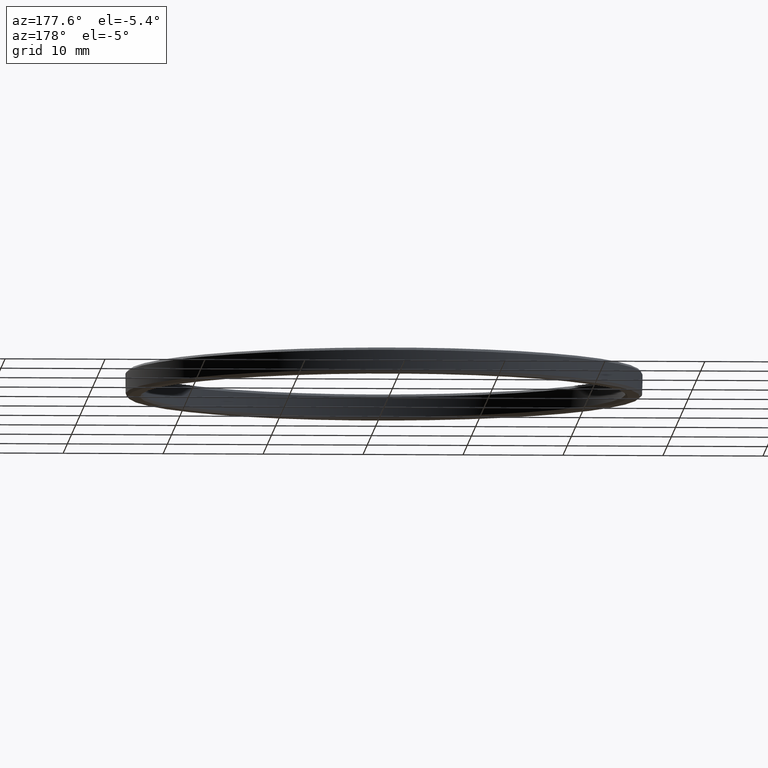
[diagram: clean part render]
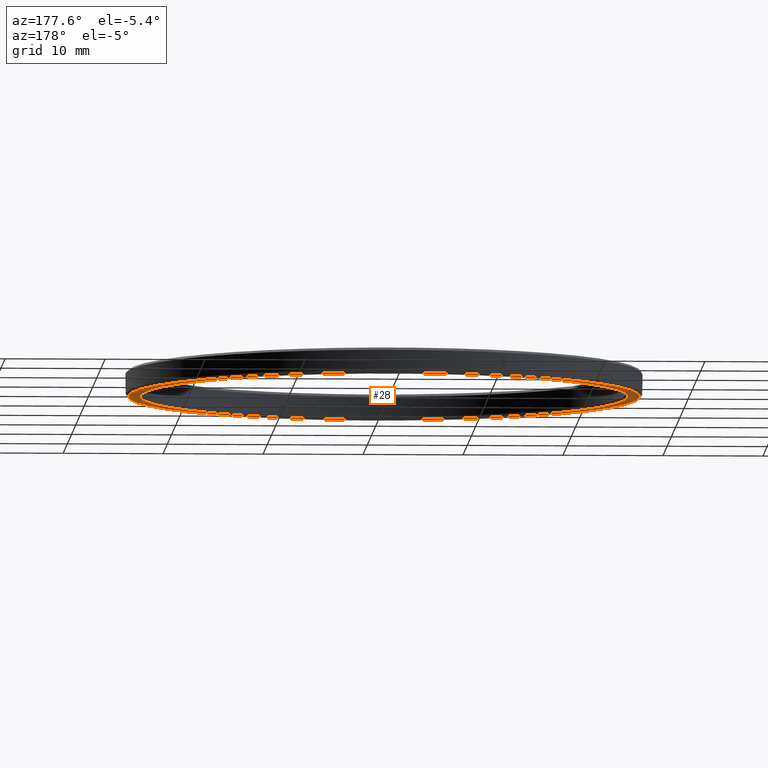
[diagram: same view with one face highlighted and labeled with its STEP entity id]
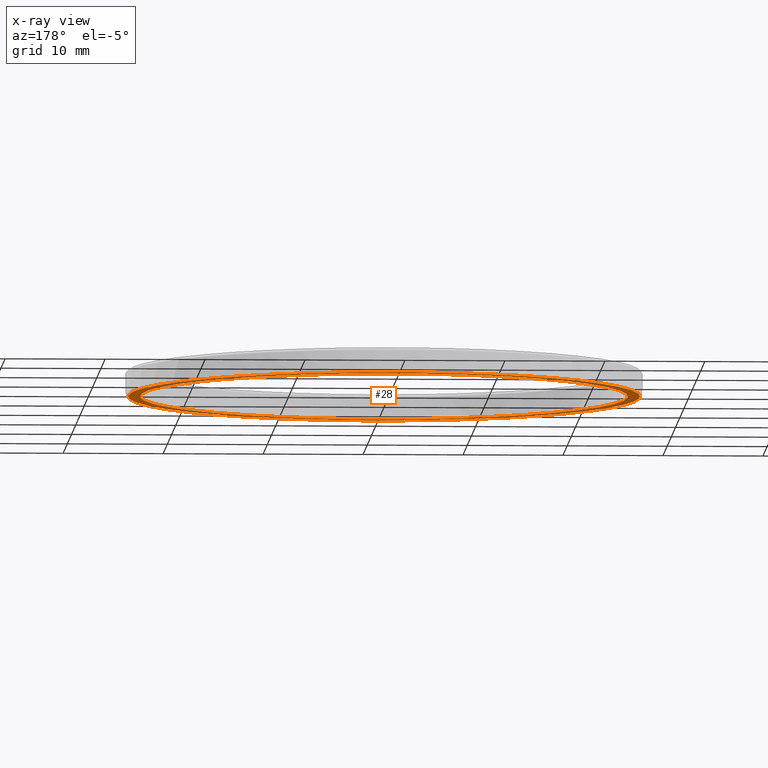
[diagram: x-ray of the same camera — body ghosted, the highlighted face saturated]
A machine part, auxiliary view. The second image highlights one B-rep face of the part: STEP entity #28.
The next image is the same camera in x-ray: the body ghosted, the highlighted face saturated — about 0% of this face is hidden behind the body in this view.
In plain terms, the highlighted planar face has unit normal (-0, -0, 1).
Its self-contained STEP definition (entity closure, byte-faithful):
#5 = FACE_BOUND ( 'NONE', #497, .T. ) ;
#8 = PLANE ( 'NONE',  #144 ) ;
#12 = FACE_OUTER_BOUND ( 'NONE', #340, .T. ) ;
#28 = ADVANCED_FACE ( 'NONE', ( #5, #12 ), #8, .F. ) ;
#36 = EDGE_CURVE ( 'NONE', #115, #115, #250, .T. ) ;
#61 = DIRECTION ( 'NONE',  ( -3.774822690998982272E-32, -3.014754438446559643E-30, 1.000000000000000000 ) ) ;
#76 = CARTESIAN_POINT ( 'NONE',  ( 0.000000000000000000, 2.775557561562891351E-14, -2.500000000000002220 ) ) ;
#89 = DIRECTION ( 'NONE',  ( -1.000000000000000000, 0.000000000000000000, 0.000000000000000000 ) ) ;
#115 = VERTEX_POINT ( 'NONE', #481 ) ;
#144 = AXIS2_PLACEMENT_3D ( 'NONE', #472, #61, #369 ) ;
#155 = DIRECTION ( 'NONE',  ( 0.000000000000000000, 0.000000000000000000, 1.000000000000000000 ) ) ;
#167 = VERTEX_POINT ( 'NONE', #256 ) ;
#239 = CIRCLE ( 'NONE', #341, 24.39999999999999858 ) ;
#246 = CARTESIAN_POINT ( 'NONE',  ( 0.000000000000000000, 1.023290938330524582E-44, -2.500000000000002220 ) ) ;
#250 = CIRCLE ( 'NONE', #459, 25.59450000000000003 ) ;
#256 = CARTESIAN_POINT ( 'NONE',  ( -24.39999999999999858, 2.775557561562891351E-14, -2.500000000000002220 ) ) ;
#286 = ORIENTED_EDGE ( 'NONE', *, *, #461, .F. ) ;
#340 = EDGE_LOOP ( 'NONE', ( #595 ) ) ;
#341 = AXIS2_PLACEMENT_3D ( 'NONE', #76, #484, #89 ) ;
#369 = DIRECTION ( 'NONE',  ( 0.000000000000000000, -1.000000000000000000, -3.014754438446559643E-30 ) ) ;
#459 = AXIS2_PLACEMENT_3D ( 'NONE', #246, #155, #465 ) ;
#461 = EDGE_CURVE ( 'NONE', #167, #167, #239, .T. ) ;
#465 = DIRECTION ( 'NONE',  ( 1.000000000000000000, 0.000000000000000000, 0.000000000000000000 ) ) ;
#472 = CARTESIAN_POINT ( 'NONE',  ( 0.000000000000000000, 2.775557561562891351E-14, -2.500000000000002220 ) ) ;
#481 = CARTESIAN_POINT ( 'NONE',  ( 25.59450000000000003, 1.023290938330524582E-44, -2.500000000000002220 ) ) ;
#484 = DIRECTION ( 'NONE',  ( 0.000000000000000000, 0.000000000000000000, -1.000000000000000000 ) ) ;
#497 = EDGE_LOOP ( 'NONE', ( #286 ) ) ;
#595 = ORIENTED_EDGE ( 'NONE', *, *, #36, .F. ) ;